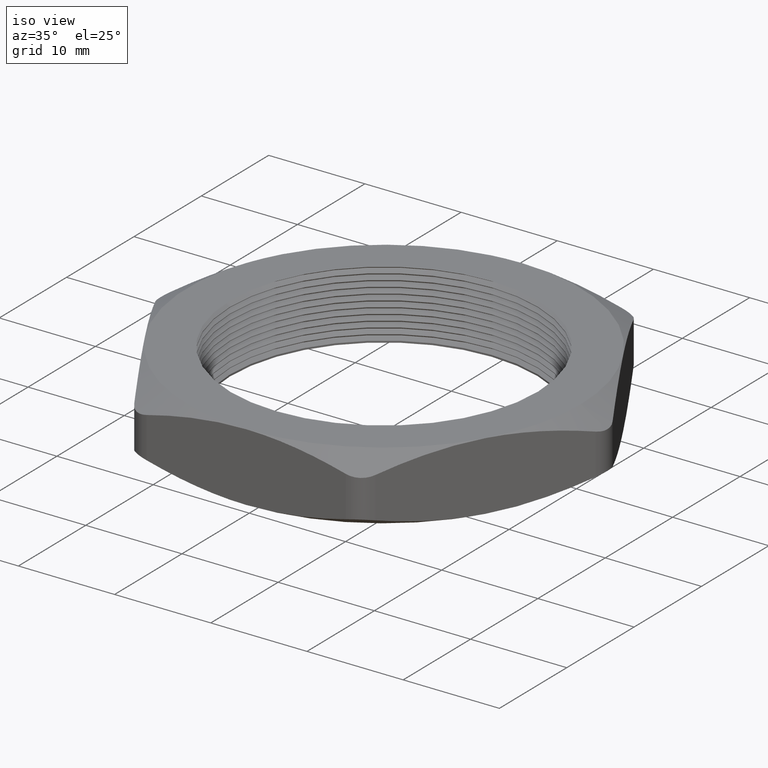
[diagram: clean part render]
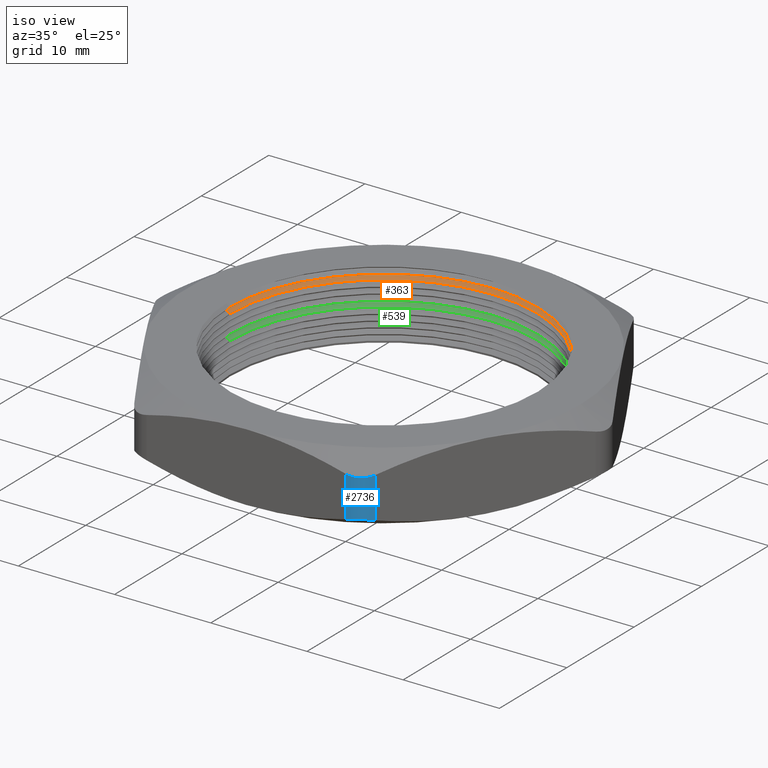
[diagram: same view with three faces highlighted in distinct colors, each labeled with its STEP entity id]
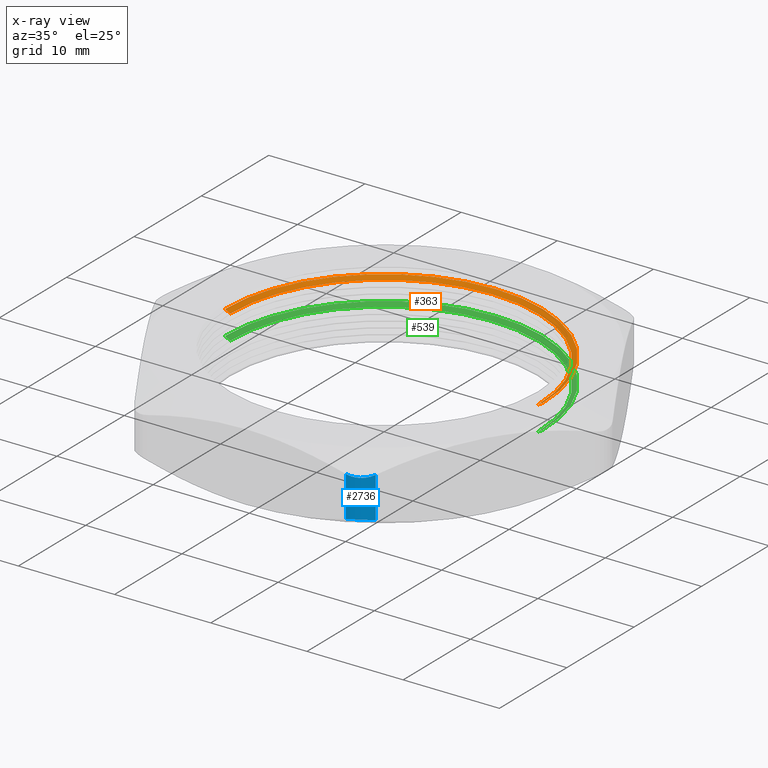
[diagram: x-ray of the same camera — body ghosted, the three highlighted faces saturated]
A machine part, iso view with three faces highlighted in distinct colors.
The next image is the same camera in x-ray (body ghosted, the three faces saturated) — at least one of them is partly hidden behind the body in this view.
Their STEP definitions:

[orange] entity #363 — the highlighted conical surface has half-angle 60 deg.
#230 = DIRECTION ( 'NONE',  ( 1.000000000000000000, 0.0000000000000000000, 0.0000000000000000000 ) ) ;
#231 = DIRECTION ( 'NONE',  ( 0.0000000000000000000, 0.0000000000000000000, 1.000000000000000000 ) ) ;
#232 = AXIS2_PLACEMENT_3D ( 'NONE', #238, #231, #230 ) ;
#233 = CIRCLE ( 'NONE', #232, 0.6500000000000000200 ) ;
#234 = DIRECTION ( 'NONE',  ( 1.000000000000000000, 0.0000000000000000000, 0.0000000000000000000 ) ) ;
#235 = DIRECTION ( 'NONE',  ( 0.0000000000000000000, 0.0000000000000000000, 1.000000000000000000 ) ) ;
#236 = CARTESIAN_POINT ( 'NONE',  ( 0.0000000000000000000, 0.0000000000000000000, 0.2319059892324150400 ) ) ;
#237 = AXIS2_PLACEMENT_3D ( 'NONE', #236, #235, #234 ) ;
#238 = CARTESIAN_POINT ( 'NONE',  ( 0.0000000000000000000, 0.0000000000000000000, 0.2434529946162077300 ) ) ;
#239 = CONICAL_SURFACE ( 'NONE', #237, 0.6300000000000000000, 1.047197551196592500 ) ;
#244 = FACE_OUTER_BOUND ( 'NONE', #356, .T. ) ;
#356 = EDGE_LOOP ( 'NONE', ( #360, #359, #361, #358 ) ) ;
#358 = ORIENTED_EDGE ( 'NONE', *, *, #367, .T. ) ;
#359 = ORIENTED_EDGE ( 'NONE', *, *, #2504, .F. ) ;
#360 = ORIENTED_EDGE ( 'NONE', *, *, #2197, .F. ) ;
#361 = ORIENTED_EDGE ( 'NONE', *, *, #2215, .T. ) ;
#363 = ADVANCED_FACE ( 'NONE', ( #244 ), #239, .F. ) ;
#367 = EDGE_CURVE ( 'NONE', #2420, #2412, #233, .T. ) ;
#925 = CARTESIAN_POINT ( 'NONE',  ( -0.6300000000000000000, 0.0000000000000000000, 0.2319059892324150400 ) ) ;
#926 = DIRECTION ( 'NONE',  ( -0.8660254037844360400, 1.060575238724903700E-016, 0.5000000000000045500 ) ) ;
#927 = VECTOR ( 'NONE', #926, 39.37007874015748100 ) ;
#928 = CARTESIAN_POINT ( 'NONE',  ( -0.6300000000000000000, 7.715274834628325400E-017, 0.2319059892324150400 ) ) ;
#929 = LINE ( 'NONE', #928, #927 ) ;
#954 = DIRECTION ( 'NONE',  ( 0.8660254037844360400, 0.0000000000000000000, 0.5000000000000045500 ) ) ;
#955 = VECTOR ( 'NONE', #954, 39.37007874015748100 ) ;
#956 = CARTESIAN_POINT ( 'NONE',  ( 0.6300000000000000000, 0.0000000000000000000, 0.2319059892324150400 ) ) ;
#957 = LINE ( 'NONE', #956, #955 ) ;
#1349 = CARTESIAN_POINT ( 'NONE',  ( 0.6500000000000000200, 7.960204194457796700E-017, 0.2434529946162077300 ) ) ;
#1367 = CARTESIAN_POINT ( 'NONE',  ( 0.6300000000000000000, 7.715274834628325400E-017, 0.2319059892324150400 ) ) ;
#1368 = CARTESIAN_POINT ( 'NONE',  ( -0.6500000000000000200, 0.0000000000000000000, 0.2434529946162077300 ) ) ;
#1545 = DIRECTION ( 'NONE',  ( 1.000000000000000000, 0.0000000000000000000, 0.0000000000000000000 ) ) ;
#1546 = DIRECTION ( 'NONE',  ( 0.0000000000000000000, 0.0000000000000000000, 1.000000000000000000 ) ) ;
#1547 = CARTESIAN_POINT ( 'NONE',  ( 0.0000000000000000000, 0.0000000000000000000, 0.2319059892324150400 ) ) ;
#1548 = AXIS2_PLACEMENT_3D ( 'NONE', #1547, #1546, #1545 ) ;
#1553 = CIRCLE ( 'NONE', #1548, 0.6300000000000000000 ) ;
#2197 = EDGE_CURVE ( 'NONE', #2198, #2412, #929, .T. ) ;
#2198 = VERTEX_POINT ( 'NONE', #925 ) ;
#2215 = EDGE_CURVE ( 'NONE', #2413, #2420, #957, .T. ) ;
#2412 = VERTEX_POINT ( 'NONE', #1368 ) ;
#2413 = VERTEX_POINT ( 'NONE', #1367 ) ;
#2420 = VERTEX_POINT ( 'NONE', #1349 ) ;
#2504 = EDGE_CURVE ( 'NONE', #2413, #2198, #1553, .T. ) ;

[blue] entity #2736 — the highlighted cylindrical surface (edge-blend (fillet) strip) has radius 2.54 mm, axis along (0, 0, -1).
#309 = CARTESIAN_POINT ( 'NONE',  ( 0.4936344801571429000, -0.7549999999999774700, 0.05603369894451978200 ) ) ;
#394 = VERTEX_POINT ( 'NONE', #309 ) ;
#430 = EDGE_CURVE ( 'NONE', #2674, #394, #560, .T. ) ;
#451 = EDGE_CURVE ( 'NONE', #2536, #2674, #623, .T. ) ;
#557 = DIRECTION ( 'NONE',  ( 0.0000000000000000000, 0.0000000000000000000, -1.000000000000000000 ) ) ;
#558 = VECTOR ( 'NONE', #557, 39.37007874015748100 ) ;
#559 = CARTESIAN_POINT ( 'NONE',  ( 0.4936344801571299600, -0.7549999999999997800, 0.2800000000000000300 ) ) ;
#560 = LINE ( 'NONE', #559, #558 ) ;
#609 = CARTESIAN_POINT ( 'NONE',  ( 0.4936344801571299600, -0.7549999999999997800, 0.2239663010554735200 ) ) ;
#610 = CARTESIAN_POINT ( 'NONE',  ( 0.4893280908863832400, -0.7624588850141034200, 0.2217225277093532500 ) ) ;
#611 = CARTESIAN_POINT ( 'NONE',  ( 0.4839825357055604300, -0.7694546523657028700, 0.2199724499956557900 ) ) ;
#612 = CARTESIAN_POINT ( 'NONE',  ( 0.4716862299610632400, -0.7817829355136782800, 0.2176361305789829600 ) ) ;
#613 = CARTESIAN_POINT ( 'NONE',  ( 0.4645762988425695100, -0.7872554515380410000, 0.2170280884318411500 ) ) ;
#614 = CARTESIAN_POINT ( 'NONE',  ( 0.4493392765316813200, -0.7960351680652525400, 0.2170358288039219200 ) ) ;
#615 = CARTESIAN_POINT ( 'NONE',  ( 0.4411208758462601400, -0.7994176478487898800, 0.2176415408248854300 ) ) ;
#616 = CARTESIAN_POINT ( 'NONE',  ( 0.4241845384990576800, -0.8039067042452391300, 0.2200048133248840300 ) ) ;
#617 = CARTESIAN_POINT ( 'NONE',  ( 0.4156420888985795100, -0.8049999999999996000, 0.2217232127178062600 ) ) ;
#618 = CARTESIAN_POINT ( 'NONE',  ( 0.4070319397786861200, -0.8049999999999997200, 0.2239663010554735800 ) ) ;
#623 = B_SPLINE_CURVE_WITH_KNOTS ( 'NONE', 3,
 ( #618, #617, #616, #615, #614, #613, #612, #611, #610, #609 ),
 .UNSPECIFIED., .F., .F.,
 ( 4, 2, 2, 2, 4 ),
 ( 0.0000000000000000000, 0.0006689416865004487600, 0.001337883373000897500, 0.002006825059501346400, 0.002675766746001795100 ),
 .UNSPECIFIED. ) ;
#1566 = CARTESIAN_POINT ( 'NONE',  ( 0.4070319397786861200, -0.8049999999999997200, 0.2239663010554735800 ) ) ;
#1752 = DIRECTION ( 'NONE',  ( 0.0000000000000000000, 0.0000000000000000000, 1.000000000000000000 ) ) ;
#1753 = VECTOR ( 'NONE', #1752, 39.37007874015748100 ) ;
#1754 = CARTESIAN_POINT ( 'NONE',  ( 0.4070319397786861200, -0.8049999999999997200, 0.2800000000000000300 ) ) ;
#1763 = LINE ( 'NONE', #1754, #1753 ) ;
#1764 = CARTESIAN_POINT ( 'NONE',  ( 0.4070319397786861200, -0.8049999999999997200, 0.05603369894452644300 ) ) ;
#1857 = CARTESIAN_POINT ( 'NONE',  ( 0.4936344801571299600, -0.7549999999999997800, 0.2239663010554735200 ) ) ;
#1942 = CARTESIAN_POINT ( 'NONE',  ( 0.4156447183201833500, -0.8050000000000000500, 0.05827747229064757900 ) ) ;
#1943 = CARTESIAN_POINT ( 'NONE',  ( 0.4243760081560488100, -0.8038684970918750200, 0.06002755000434542600 ) ) ;
#1944 = CARTESIAN_POINT ( 'NONE',  ( 0.4412007674194973200, -0.7993837255184244000, 0.06236386942101832000 ) ) ;
#1945 = CARTESIAN_POINT ( 'NONE',  ( 0.4494950708784626300, -0.7959626025628302500, 0.06297191156815971900 ) ) ;
#1946 = CARTESIAN_POINT ( 'NONE',  ( 0.4647170395845014500, -0.7871568124271707300, 0.06296417119607726500 ) ) ;
#1947 = CARTESIAN_POINT ( 'NONE',  ( 0.4717555533475442100, -0.7817307085468808700, 0.06235845917511227000 ) ) ;
#1948 = CARTESIAN_POINT ( 'NONE',  ( 0.4841113588994908100, -0.7693079383553587100, 0.05999518667511077900 ) ) ;
#1949 = CARTESIAN_POINT ( 'NONE',  ( 0.4893294055971848000, -0.7624566078681965800, 0.05827678728203036100 ) ) ;
#1950 = CARTESIAN_POINT ( 'NONE',  ( 0.4936344801571429000, -0.7549999999999774700, 0.05603369894451978200 ) ) ;
#1953 = B_SPLINE_CURVE_WITH_KNOTS ( 'NONE', 3,
 ( #1950, #1949, #1948, #1947, #1946, #1945, #1944, #1943, #1942, #2005 ),
 .UNSPECIFIED., .F., .F.,
 ( 4, 2, 2, 2, 4 ),
 ( 9.541077681197195100E-017, 0.0006689416865005437400, 0.001337883373000992100, 0.002006825059501440500, 0.002675766746001888700 ),
 .UNSPECIFIED. ) ;
#2005 = CARTESIAN_POINT ( 'NONE',  ( 0.4070319397786861200, -0.8049999999999997200, 0.05603369894452644300 ) ) ;
#2029 = DIRECTION ( 'NONE',  ( -1.000000000000000000, 0.0000000000000000000, 0.0000000000000000000 ) ) ;
#2030 = DIRECTION ( 'NONE',  ( 0.0000000000000000000, 0.0000000000000000000, -1.000000000000000000 ) ) ;
#2031 = AXIS2_PLACEMENT_3D ( 'NONE', #2040, #2030, #2029 ) ;
#2033 = CYLINDRICAL_SURFACE ( 'NONE', #2031, 0.1000000000000000200 ) ;
#2034 = FACE_OUTER_BOUND ( 'NONE', #2734, .T. ) ;
#2040 = CARTESIAN_POINT ( 'NONE',  ( 0.4070319397786861200, -0.7049999999999997400, 0.2800000000000000300 ) ) ;
#2536 = VERTEX_POINT ( 'NONE', #1566 ) ;
#2605 = VERTEX_POINT ( 'NONE', #1764 ) ;
#2608 = EDGE_CURVE ( 'NONE', #2605, #2536, #1763, .T. ) ;
#2674 = VERTEX_POINT ( 'NONE', #1857 ) ;
#2706 = EDGE_CURVE ( 'NONE', #394, #2605, #1953, .T. ) ;
#2731 = ORIENTED_EDGE ( 'NONE', *, *, #2706, .F. ) ;
#2732 = ORIENTED_EDGE ( 'NONE', *, *, #430, .F. ) ;
#2733 = ORIENTED_EDGE ( 'NONE', *, *, #2608, .F. ) ;
#2734 = EDGE_LOOP ( 'NONE', ( #2735, #2733, #2731, #2732 ) ) ;
#2735 = ORIENTED_EDGE ( 'NONE', *, *, #451, .F. ) ;
#2736 = ADVANCED_FACE ( 'NONE', ( #2034 ), #2033, .T. ) ;

[green] entity #539 — the highlighted conical surface has half-angle 60 deg.
#59 = EDGE_CURVE ( 'NONE', #2335, #2351, #158, .T. ) ;
#156 = DIRECTION ( 'NONE',  ( 0.0000000000000000000, 0.0000000000000000000, 1.000000000000000000 ) ) ;
#157 = AXIS2_PLACEMENT_3D ( 'NONE', #164, #156, #219 ) ;
#158 = CIRCLE ( 'NONE', #157, 0.6500000000000000200 ) ;
#164 = CARTESIAN_POINT ( 'NONE',  ( 0.0000000000000000000, 0.0000000000000000000, 0.1434529946162077200 ) ) ;
#219 = DIRECTION ( 'NONE',  ( 1.000000000000000000, 0.0000000000000000000, 0.0000000000000000000 ) ) ;
#471 = ORIENTED_EDGE ( 'NONE', *, *, #2323, .F. ) ;
#478 = ORIENTED_EDGE ( 'NONE', *, *, #59, .T. ) ;
#480 = ORIENTED_EDGE ( 'NONE', *, *, #2660, .F. ) ;
#481 = ORIENTED_EDGE ( 'NONE', *, *, #2257, .T. ) ;
#537 = EDGE_LOOP ( 'NONE', ( #471, #480, #481, #478 ) ) ;
#539 = ADVANCED_FACE ( 'NONE', ( #772 ), #771, .F. ) ;
#768 = DIRECTION ( 'NONE',  ( 1.000000000000000000, 0.0000000000000000000, 0.0000000000000000000 ) ) ;
#769 = DIRECTION ( 'NONE',  ( 0.0000000000000000000, 0.0000000000000000000, 1.000000000000000000 ) ) ;
#770 = AXIS2_PLACEMENT_3D ( 'NONE', #776, #769, #768 ) ;
#771 = CONICAL_SURFACE ( 'NONE', #770, 0.6300000000000000000, 1.047197551196592500 ) ;
#772 = FACE_OUTER_BOUND ( 'NONE', #537, .T. ) ;
#776 = CARTESIAN_POINT ( 'NONE',  ( 0.0000000000000000000, 0.0000000000000000000, 0.1319059892324150300 ) ) ;
#1032 = DIRECTION ( 'NONE',  ( 0.8660254037844360400, 0.0000000000000000000, 0.5000000000000045500 ) ) ;
#1033 = VECTOR ( 'NONE', #1032, 39.37007874015748100 ) ;
#1034 = CARTESIAN_POINT ( 'NONE',  ( 0.6300000000000000000, 0.0000000000000000000, 0.1319059892324150300 ) ) ;
#1035 = LINE ( 'NONE', #1034, #1033 ) ;
#1104 = CARTESIAN_POINT ( 'NONE',  ( 0.6300000000000000000, 7.715274834628325400E-017, 0.1319059892324150300 ) ) ;
#1119 = CARTESIAN_POINT ( 'NONE',  ( -0.6300000000000000000, 0.0000000000000000000, 0.1319059892324150300 ) ) ;
#1156 = DIRECTION ( 'NONE',  ( -0.8660254037844360400, 1.060575238724903700E-016, 0.5000000000000045500 ) ) ;
#1157 = VECTOR ( 'NONE', #1156, 39.37007874015748100 ) ;
#1158 = CARTESIAN_POINT ( 'NONE',  ( -0.6300000000000000000, 7.715274834628325400E-017, 0.1319059892324150300 ) ) ;
#1159 = LINE ( 'NONE', #1158, #1157 ) ;
#1193 = CARTESIAN_POINT ( 'NONE',  ( 0.6500000000000000200, 7.960204194457796700E-017, 0.1434529946162077200 ) ) ;
#1229 = CARTESIAN_POINT ( 'NONE',  ( -0.6500000000000000200, 0.0000000000000000000, 0.1434529946162077200 ) ) ;
#1830 = DIRECTION ( 'NONE',  ( 1.000000000000000000, 0.0000000000000000000, 0.0000000000000000000 ) ) ;
#1831 = DIRECTION ( 'NONE',  ( 0.0000000000000000000, 0.0000000000000000000, 1.000000000000000000 ) ) ;
#1832 = CARTESIAN_POINT ( 'NONE',  ( 0.0000000000000000000, 0.0000000000000000000, 0.1319059892324150300 ) ) ;
#1833 = AXIS2_PLACEMENT_3D ( 'NONE', #1832, #1831, #1830 ) ;
#1834 = CIRCLE ( 'NONE', #1833, 0.6300000000000000000 ) ;
#2257 = EDGE_CURVE ( 'NONE', #2282, #2335, #1035, .T. ) ;
#2275 = VERTEX_POINT ( 'NONE', #1119 ) ;
#2282 = VERTEX_POINT ( 'NONE', #1104 ) ;
#2323 = EDGE_CURVE ( 'NONE', #2275, #2351, #1159, .T. ) ;
#2335 = VERTEX_POINT ( 'NONE', #1193 ) ;
#2351 = VERTEX_POINT ( 'NONE', #1229 ) ;
#2660 = EDGE_CURVE ( 'NONE', #2282, #2275, #1834, .T. ) ;